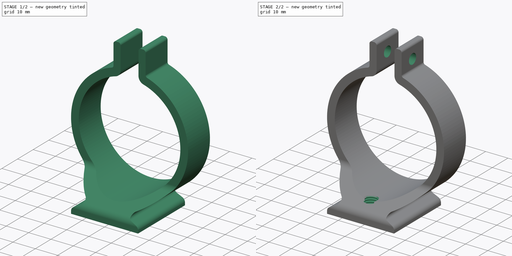
[diagram: build sequence overview — one tinted view per stage of 2, left to right]
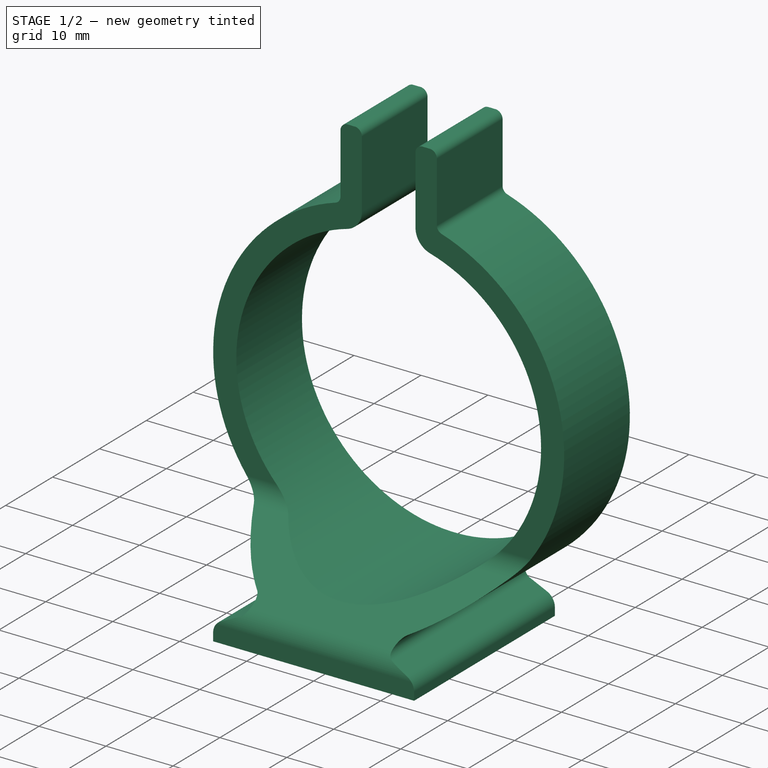
[diagram: stage 1 of 2 — iso view after this stage's code; geometry added in this stage tinted green]
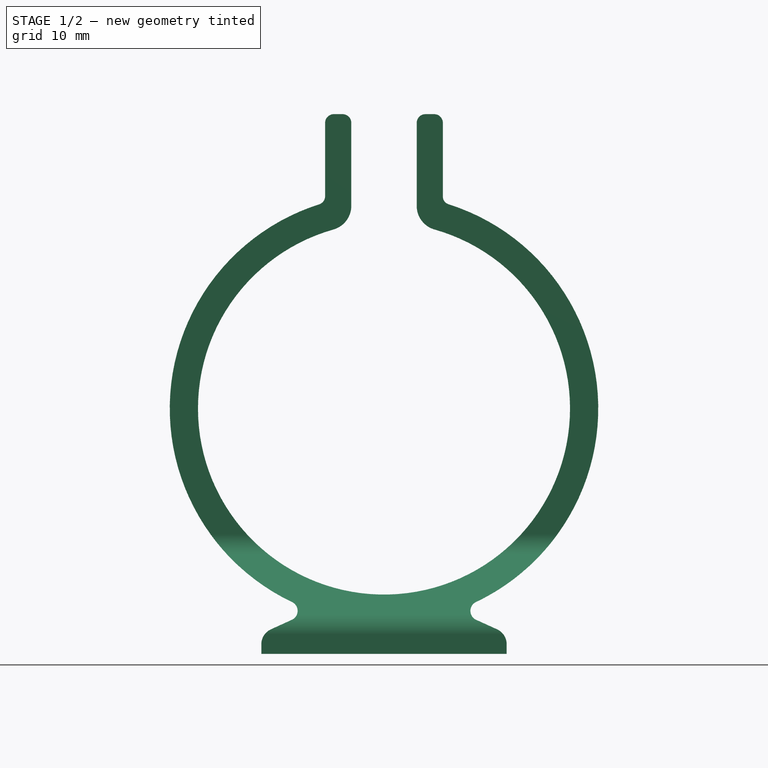
[diagram: stage 1 of 2 — front view after this stage's code; geometry added in this stage tinted green]
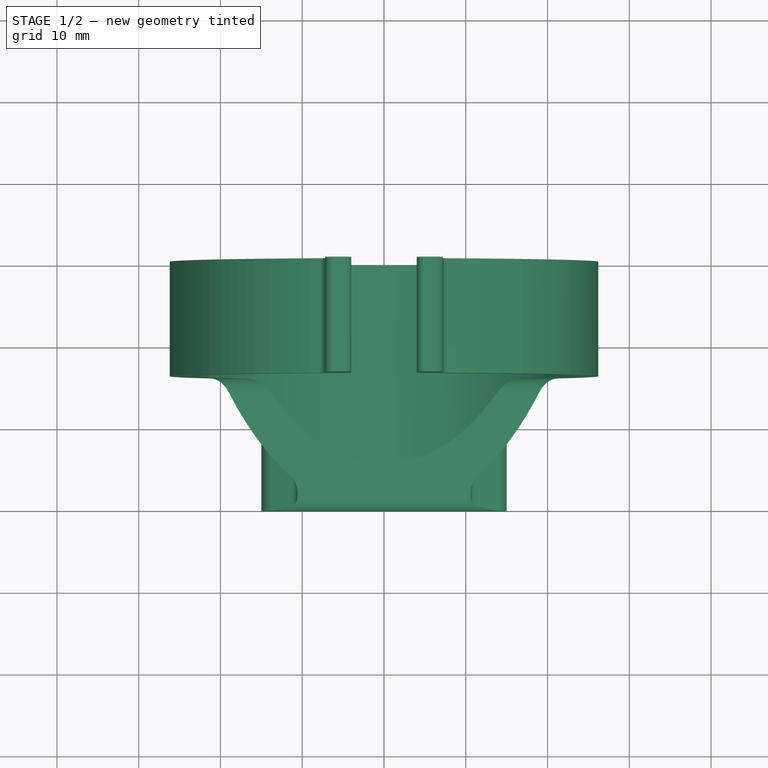
[diagram: stage 1 of 2 — top view after this stage's code; geometry added in this stage tinted green]
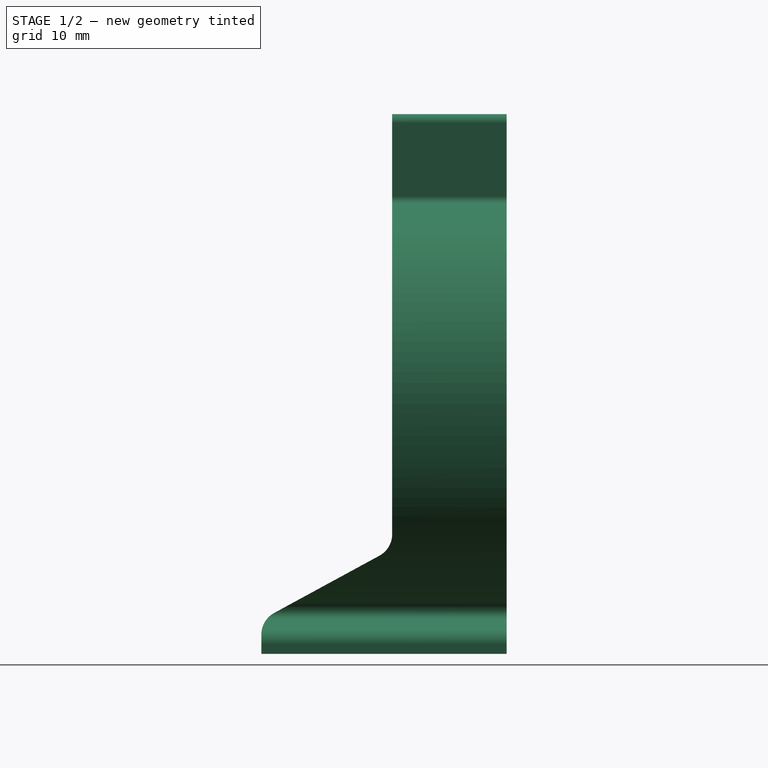
[diagram: stage 1 of 2 — right view after this stage's code; geometry added in this stage tinted green]
FCSTD DOCUMENT  (FreeCAD 1.0R39109 (Git))
Label: cam_lens_mt_75mm_shorter
License: All rights reserved
LicenseURL: http://en.wikipedia.org/wiki/All_rights_reserved
objects: Sketcher::SketchObject×4, PartDesign::Pocket×2, Spreadsheet::Sheet×1, PartDesign::Pad×1, PartDesign::Hole×1, PartDesign::Body×1, App::Part×1, App::DocumentObjectGroup×1
note: 21 computed .brp shape members not serialized (recipe doc carries the construction recipe); baked Part::Feature solids carry a one-line shape summary decoded from their .brp

FEATURE [Spreadsheet::Sheet] Spreadsheet  label="pp"
  cells = A2='lens diam; B2(lens_diam)==46 mm; A3='ring width; B3(ring_width)==14 mm; A4='ring height above base; B4(ring_height_above_base)==12 mm; A5='ring tab height; B5(ring_tab_height)==9 mm; A6='ring tab hole diam; B6(ring_tab_hole)==4.6 mm; A7='ring gap; B7(ring_gap)==8 mm; A8='wall thick ring; B8(wall_thick_ring)==3.2 mm; A9='wall thick plate; B9(wall_thick)==5 mm; A10='plate width; B10(plate_width)==30 mm; A11='plate length; B11(plate_leng)==30 mm; A13='std rad; B13(std_rad)==3 mm; A14='std rad small; B14(std_rad_small)==1.6 mm
FEATURE [Sketcher::SketchObject] Sketch  label="Sketch_main"
  ArcFitTolerance = 0
  FullyConstrained = true
  MakeInternals = false
  MapMode = 5
  Placement = pos=(0,0,0) rot=(1,0,0;1.5708rad)
  expr: Constraints[19] = <<pp>>.std_rad
  expr: Constraints[3] = <<pp>>.lens_diam + 2 * <<pp>>.wall_thick_ring
  sketch-geometry (32):
    g0: ArcOfCircle CenterX=0 CenterY=30 CenterZ=0 NormalX=0 NormalY=0 NormalZ=1 AngleXU=0 Radius=22.75 StartAngle=1.84611 EndAngle=7.57867
    g1: ArcOfCircle CenterX=0 CenterY=30 CenterZ=0 NormalX=0 NormalY=0 NormalZ=1 AngleXU=0 Radius=26.2 StartAngle=1.87882 EndAngle=4.26857
    g2: ArcOfCircle CenterX=0 CenterY=30 CenterZ=0 NormalX=0 NormalY=0 NormalZ=1 AngleXU=0 Radius=26.2 StartAngle=5.15621 EndAngle=7.54775
    g3: LineSegment StartX=-15 StartY=0 StartZ=0 EndX=15 EndY=0 EndZ=0
    g4: LineSegment StartX=-15 StartY=0 StartZ=0 EndX=-15 EndY=1.17904 EndZ=0
    g5: LineSegment StartX=15 StartY=0 StartZ=0 EndX=15 EndY=1.17904 EndZ=0
    g6: LineSegment [constr] StartX=-15 StartY=1.17904 StartZ=0 EndX=15 EndY=1.17904 EndZ=0
    g7: LineSegment StartX=-4 StartY=54.7803 StartZ=0 EndX=-4 EndY=64.9345 EndZ=0
    g8: LineSegment StartX=4 StartY=54.7803 StartZ=0 EndX=4 EndY=64.9345 EndZ=0
    g9: ArcOfCircle CenterX=-7 CenterY=54.7803 CenterZ=0 NormalX=0 NormalY=0 NormalZ=1 AngleXU=0 Radius=3 StartAngle=4.9877 EndAngle=6.28319
    g10: ArcOfCircle CenterX=7 CenterY=54.7803 CenterZ=0 NormalX=0 NormalY=0 NormalZ=1 AngleXU=0 Radius=3 StartAngle=3.14159 EndAngle=4.43708
    g11: LineSegment StartX=-7.2 StartY=55.9833 StartZ=0 EndX=-7.2 EndY=64.9345 EndZ=0
    g12: LineSegment StartX=-6.13333 StartY=66.0012 StartZ=0 EndX=-5.06667 EndY=66.0012 EndZ=0
    g13: LineSegment StartX=5.06667 StartY=66.0012 StartZ=0 EndX=6.13333 EndY=66.0012 EndZ=0
    g14: ArcOfCircle CenterX=-8.26667 CenterY=55.9833 CenterZ=0 NormalX=0 NormalY=0 NormalZ=1 AngleXU=0 Radius=1.06667 StartAngle=5.02042 EndAngle=6.28319
    g15: ArcOfCircle CenterX=8.2 CenterY=55.9345 CenterZ=0 NormalX=0 NormalY=0 NormalZ=1 AngleXU=0 Radius=1 StartAngle=3.14159 EndAngle=4.40615
    g16: LineSegment [constr] StartX=-5.06667 StartY=66.0012 StartZ=0 EndX=5.06667 EndY=66.0012 EndZ=0
    g17: LineSegment [constr] StartX=-4 StartY=54.7803 StartZ=0 EndX=4 EndY=54.7803 EndZ=0
    g18: ArcOfCircle CenterX=-6.13333 CenterY=64.9345 CenterZ=0 NormalX=0 NormalY=0 NormalZ=1 AngleXU=0 Radius=1.06667 StartAngle=1.5708 EndAngle=3.14159
    g19: ArcOfCircle CenterX=-5.06667 CenterY=64.9345 CenterZ=0 NormalX=0 NormalY=0 NormalZ=1 AngleXU=0 Radius=1.06667 StartAngle=1e-15 EndAngle=1.5708
    g20: ArcOfCircle CenterX=5.06667 CenterY=64.9345 CenterZ=0 NormalX=0 NormalY=0 NormalZ=1 AngleXU=0 Radius=1.06667 StartAngle=1.5708 EndAngle=3.14159
    g21: ArcOfCircle CenterX=6.13333 CenterY=64.9345 CenterZ=0 NormalX=0 NormalY=0 NormalZ=1 AngleXU=0 Radius=1.06667 StartAngle=2.1e-15 EndAngle=1.5708
    g22: LineSegment StartX=-11.269 StartY=4.16195 StartZ=0 EndX=-13.8271 EndY=3 EndZ=0
    g23: LineSegment StartX=11.269 StartY=4.16195 StartZ=0 EndX=13.8271 EndY=3 EndZ=0
    g24: ArcOfCircle CenterX=-11.7653 CenterY=5.25453 CenterZ=0 NormalX=0 NormalY=0 NormalZ=1 AngleXU=0 Radius=1.2 StartAngle=5.13875 EndAngle=7.41017
    g25: ArcOfCircle CenterX=11.7653 CenterY=5.25453 CenterZ=0 NormalX=0 NormalY=0 NormalZ=1 AngleXU=0 Radius=1.2 StartAngle=2.01461 EndAngle=4.28603
    g26: ArcOfCircle CenterX=13 CenterY=1.17904 CenterZ=0 NormalX=0 NormalY=0 NormalZ=1 AngleXU=0 Radius=2 StartAngle=0 EndAngle=1.14444
    g27: ArcOfCircle CenterX=-13 CenterY=1.17904 CenterZ=0 NormalX=0 NormalY=0 NormalZ=1 AngleXU=0 Radius=2 StartAngle=1.99716 EndAngle=3.14159
    g28: GeomPoint [constr] X=0 Y=7.25 Z=0
    g29: GeomPoint [constr] X=7.2 Y=60.4345 Z=0
    g30: LineSegment [constr] StartX=-11.25 StartY=6.33827 StartZ=0 EndX=11.25 EndY=6.33827 EndZ=0
    g31: LineSegment StartX=7.2 StartY=55.9345 StartZ=0 EndX=7.2 EndY=64.9345 EndZ=0
  constraints (77):
    c: PointOnObject(g0,g-2)
    c: Coincident(g1,g0)
    c: Coincident(g2,g0)
    c: Diameter(g2) = 52.4
    c: Equal(g2,g1)
    c: Horizontal(g3)
    c: Symmetric(g3,g3,g-1)
    c: Coincident(g4,g3)
    c: Vertical(g4)
    c: Coincident(g5,g3)
    c: Vertical(g5)
    c: Horizontal(g6)
    c: Vertical(g7)
    c: Vertical(g8)
    c: Tangent(g7,g9) = -1.5708
    c: Tangent(g0,g9) = 1.5708
    c: Tangent(g0,g10) = 1.5708
    c: Tangent(g8,g10) = 1.5708
    c: Equal(g10,g9)
    c: Radius(g10) = 3
    c: Vertical(g11)
    c: Horizontal(g13)
    c: Horizontal(g12)
    c: Tangent(g11,g14) = -1.5708
    c: Tangent(g1,g14) = 1.5708
    c: Tangent(g2,g15) = 1.5708
    c: Radius(g15) = 1
    c: Coincident(g17,g7)
    c: Coincident(g17,g8)
    c: Horizontal(g16)
    c: Horizontal(g17)
    c: Equal(g13,g12)
    c: Tangent(g11,g18) = 1.5708
    c: Tangent(g12,g18) = 1.5708
    c: Tangent(g7,g19) = -1.5708
    c: Tangent(g12,g19) = 1.5708
    c: Tangent(g8,g20) = 1.5708
    c: Tangent(g13,g20) = 1.5708
    c: Tangent(g13,g21) = 1.5708
    c: Coincident(g16,g13)
    c: Coincident(g16,g12)
    c: Equal(g21,g20)
    c: Equal(g19,g20)
    c: Equal(g19,g18)
    c: Tangent(g1,g24) = 1.5708
    c: Tangent(g22,g24) = 1.5708
    c: Tangent(g2,g25) = 1.5708
    c: Tangent(g23,g25) = -1.5708
    c: Tangent(g5,g26) = -1.5708
    c: Tangent(g23,g26) = 1.5708
    c: Tangent(g22,g27) = -1.5708
    c: Tangent(g4,g27) = 1.5708
    c: Coincident(g6,g4)
    c: Coincident(g6,g5)
    c: DistanceY(g3,g23) = 3
    c: PointOnObject(g28,g-2)
    c: PointOnObject(g28,g0)
    c: DistanceX(g3,g3) = 30
    c: Radius(g25) = 1.2
    c: Equal(g25,g24)
    c: Coincident(g30,g1)
    c: Coincident(g30,g2)
    c: Horizontal(g30)
    c: Radius(g26) = 2
    c: Radius(g21) = 1.06667
    c: Equal(g14,g18)
    c: Diameter(g0) = 45.5
    c: Equal(g26,g27)
    c: Tangent(g31,g21) = -1.5708
    c: Tangent(g31,g15) = 1.5708
    c: Vertical(g31)
    c: DistanceX(g8,g21) = 3.2
    c: DistanceX(g17,g17) = 8
    c: DistanceY(g31,g31) = 9
    c: Symmetric(g15,g21,g29)
    c: DistanceY(g3,g0) = 30
    c: DistanceX(g30,g30) = 22.5
FEATURE [PartDesign::Pad] Pad  label="Pad_MainExt"
  Direction = (0,-1,2e-16)
  Length = 30
  Length2 = 10
  Placement = pos=(0,0,0) rot=(1,0,0;1.5708rad)
  Profile = -> Sketch
  ReferenceAxis = -> Sketch [N_Axis]
  Suppressed = false
  Type = 0
  expr: Length = <<pp>>.plate_leng
FEATURE [Sketcher::SketchObject] Sketch001
  ArcFitTolerance = 0
  FullyConstrained = true
  MakeInternals = false
  MapMode = 5
  Placement = pos=(0,0,0) rot=(0.57735,0.57735,0.57735;2.0944rad)
  expr: Constraints[14] = <<pp>>.std_rad
  expr: Constraints[16] = <<pp>>.wall_thick
  expr: Constraints[17] = <<pp>>.ring_height_above_base
  expr: Constraints[18] = <<pp>>.ring_width
  expr: Constraints[19] = <<pp>>.lens_diam * 1.5 + 10 mm
  expr: Constraints[21] = <<pp>>.plate_leng
  sketch-geometry (8):
    g0: LineSegment StartX=-14 StartY=93.6353 StartZ=0 EndX=-14 EndY=14.6353 EndZ=0
    g1: LineSegment StartX=-15.5664 StartY=12 StartZ=0 EndX=-28.4336 EndY=5 EndZ=0
    g2: LineSegment StartX=-93 StartY=0 StartZ=0 EndX=-93 EndY=93.6353 EndZ=0
    g3: LineSegment StartX=-93 StartY=93.6353 StartZ=0 EndX=-14 EndY=93.6353 EndZ=0
    g4: LineSegment StartX=-30 StartY=2.36472 StartZ=0 EndX=-30 EndY=0 EndZ=0
    g5: LineSegment StartX=-30 StartY=0 StartZ=0 EndX=-93 EndY=0 EndZ=0
    g6: ArcOfCircle CenterX=-17 CenterY=14.6353 CenterZ=0 NormalX=0 NormalY=0 NormalZ=1 AngleXU=0 Radius=3 StartAngle=5.21063 EndAngle=6.28319
    g7: ArcOfCircle CenterX=-27 CenterY=2.36472 CenterZ=0 NormalX=0 NormalY=0 NormalZ=1 AngleXU=0 Radius=3 StartAngle=2.06903 EndAngle=3.14159
  constraints (22):
    c: Vertical(g0)
    c: Vertical(g2)
    c: Coincident(g3,g2)
    c: Coincident(g3,g0)
    c: Horizontal(g3)
    c: PointOnObject(g4,g-1)
    c: Vertical(g4)
    c: Coincident(g5,g4)
    c: PointOnObject(g5,g-1)
    c: Coincident(g2,g5)
    c: Tangent(g1,g6) = 1.5708
    c: Tangent(g0,g6) = 1.5708
    c: Tangent(g1,g7) = -1.5708
    c: Tangent(g4,g7) = -1.5708
    c: Radius(g6) = 3
    c: Equal(g6,g7)
    c: DistanceY(g4,g1) = 5
    c: DistanceY(g-1,g1) = 12
    c: DistanceX(g0,g-1) = 14
    c: DistanceY(g0,g0) = 79
    c: Equal(g0,g3)
    c: DistanceX(g4,g-1) = 30
FEATURE [PartDesign::Pocket] Pocket  label="Pocket_SculptPlate"
  BaseFeature = -> Pad
  Direction = (-1,-1e-16,1e-16)
  Length = 5
  Length2 = 5
  Midplane = true
  Placement = pos=(0,0,0) rot=(1,0,0;1.5708rad)
  Profile = -> Sketch001
  ReferenceAxis = -> Sketch001 [N_Axis]
  Suppressed = false
  Type = 1
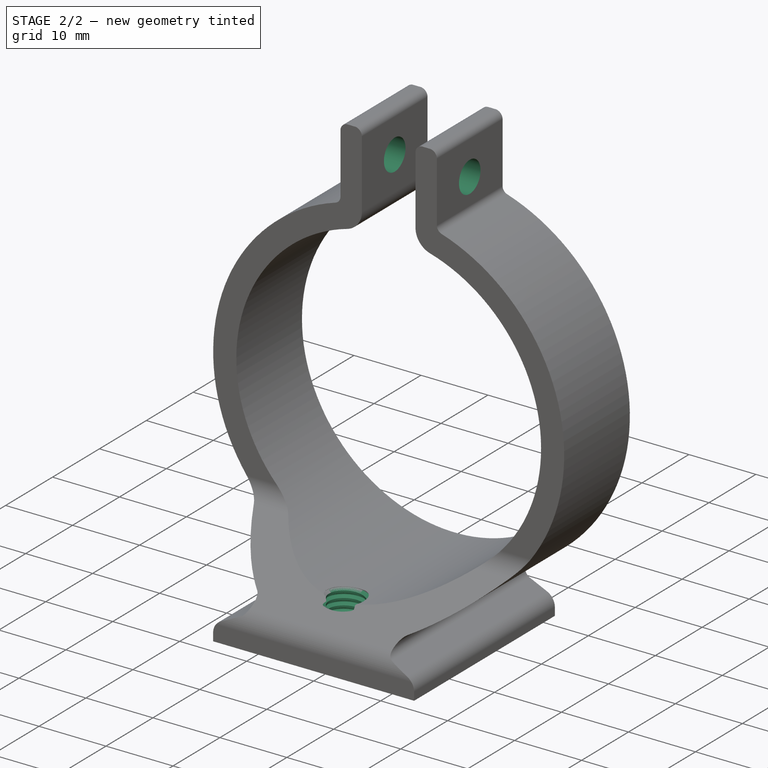
[diagram: stage 2 of 2 — iso view after this stage's code; geometry added in this stage tinted green]
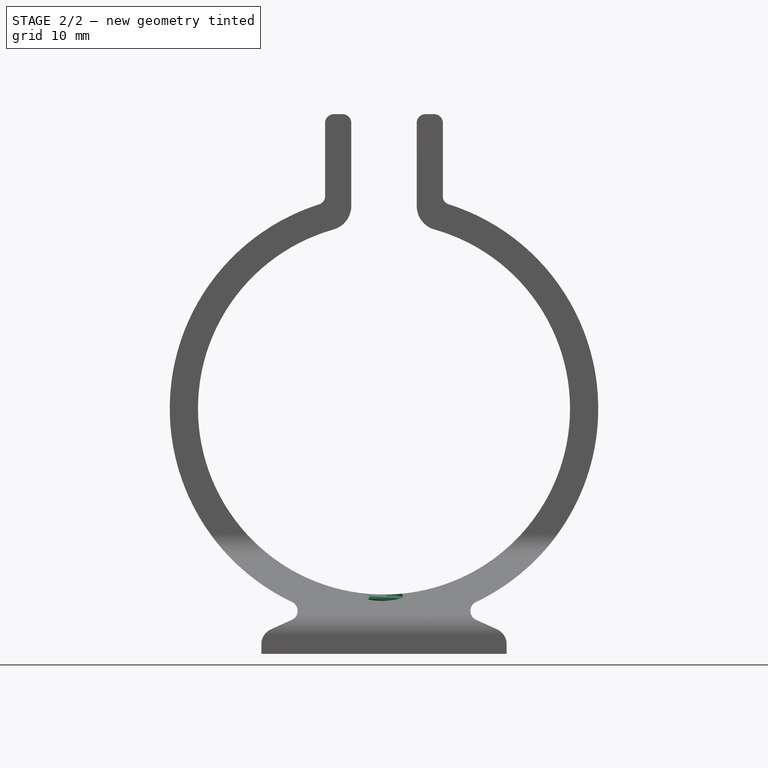
[diagram: stage 2 of 2 — front view after this stage's code; geometry added in this stage tinted green]
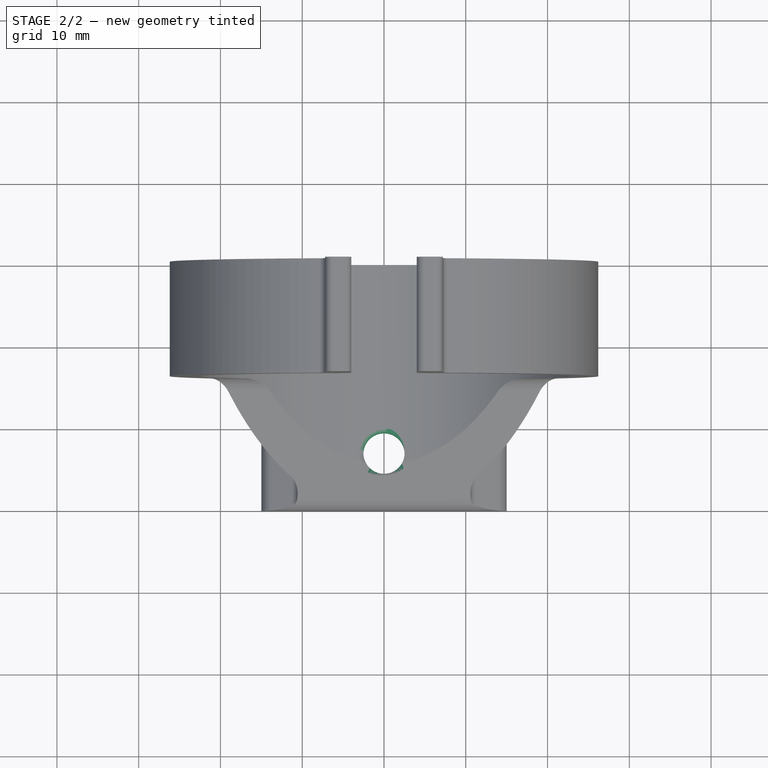
[diagram: stage 2 of 2 — top view after this stage's code; geometry added in this stage tinted green]
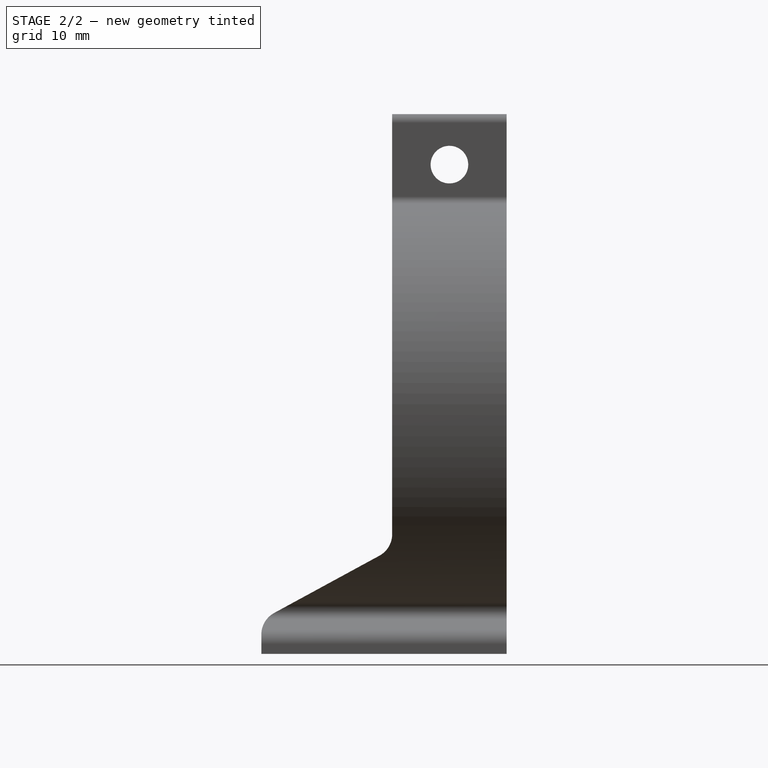
[diagram: stage 2 of 2 — right view after this stage's code; geometry added in this stage tinted green]
FEATURE [Sketcher::SketchObject] Sketch003
  ArcFitTolerance = 0
  FullyConstrained = true
  MakeInternals = false
  MapMode = 5
  Placement = pos=(0,0,0) rot=(0.57735,0.57735,0.57735;2.0944rad)
  expr: Constraints[0] = <<pp>>.ring_width / 2
  expr: Constraints[1] = <<pp>>.ring_tab_hole
  sketch-geometry (1):
    g0: Circle CenterX=-7 CenterY=59.83 CenterZ=0 NormalX=0 NormalY=0 NormalZ=1 AngleXU=0 Radius=2.3
  constraints (3):
    c: DistanceX(g0,g-1) = 7
    c: Diameter(g0) = 4.6
    c: DistanceY(g-1,g0) = 59.83
FEATURE [PartDesign::Pocket] Pocket001
  BaseFeature = -> Pocket
  Direction = (-1,-1e-16,1e-16)
  Length = 5
  Length2 = 5
  Midplane = true
  Placement = pos=(0,0,0) rot=(1,0,0;1.5708rad)
  Profile = -> Sketch003
  ReferenceAxis = -> Sketch003 [N_Axis]
  Suppressed = false
  Type = 1
FEATURE [Sketcher::SketchObject] Sketch004
  ArcFitTolerance = 0
  FullyConstrained = true
  MakeInternals = false
  MapMode = 5
  Placement = pos=(0,0,0) rot=(1,0,0;3.14159rad)
  sketch-geometry (1):
    g0: Circle CenterX=0 CenterY=23 CenterZ=0 NormalX=0 NormalY=0 NormalZ=1 AngleXU=0 Radius=5
  constraints (3):
    c: PointOnObject(g0,g-2)
    c: Diameter(g0) = 10
    c: DistanceY(g-1,g0) = 23
FEATURE [PartDesign::Hole] Hole
  BaseFeature = -> Pocket001
  CustomThreadClearance = 0
  Depth = 25
  DepthType = 0
  Diameter = 5.026
  DrillForDepth = false
  DrillPoint = 1
  DrillPointAngle = 118
  HoleCutCountersinkAngle = 90
  HoleCutCustomValues = false
  HoleCutDepth = 0
  HoleCutDiameter = 6.1
  HoleCutType = 0
  ModelThread = true
  Placement = pos=(0,0,0) rot=(1,0,0;1.5708rad)
  Profile = -> Sketch004
  Refine = true
  Suppressed = false
  Tapered = false
  TaperedAngle = 90
  ThreadClass = 0
  ThreadDepth = 25
  ThreadDepthType = 0
  ThreadDirection = 0
  ThreadFit = 0
  ThreadSize = 14
  ThreadType = 1
  Threaded = true
  UseCustomThreadClearance = false
FEATURE [PartDesign::Body] Body  label="cam_lens_mt_M6"
  AllowCompound = false
  Group = -> [Sketch,Pad,Sketch001,Pocket,Sketch003,Pocket001,Sketch004,Hole]
  Origin = -> Origin001
  Tip = -> Hole
FEATURE [App::Part] Part  label="cam_lens_mt_part"
  Group = -> [Body]
  Origin = -> Origin
FEATURE [App::DocumentObjectGroup] Group
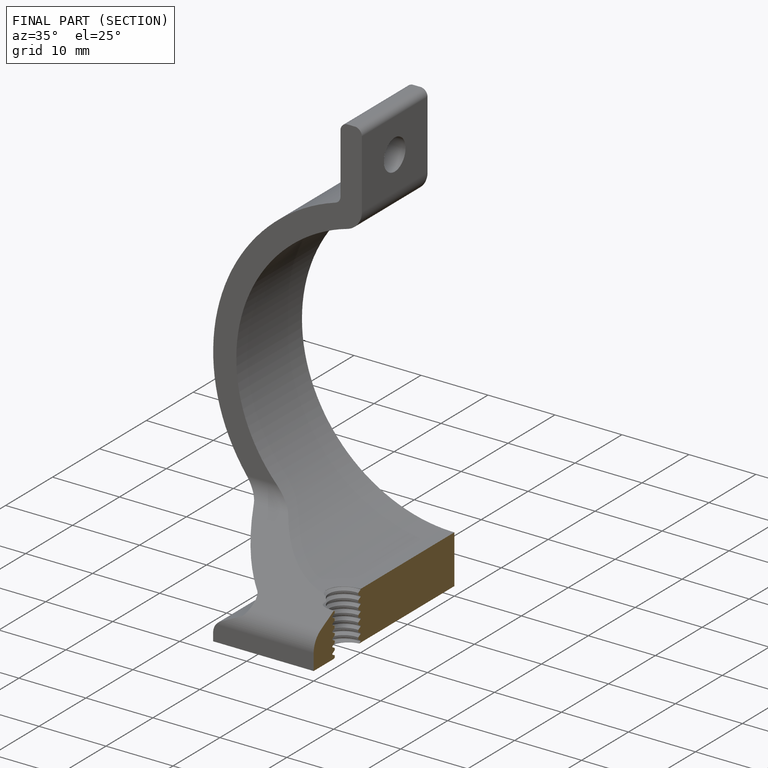
[diagram: finished part — half-section view (interior)]
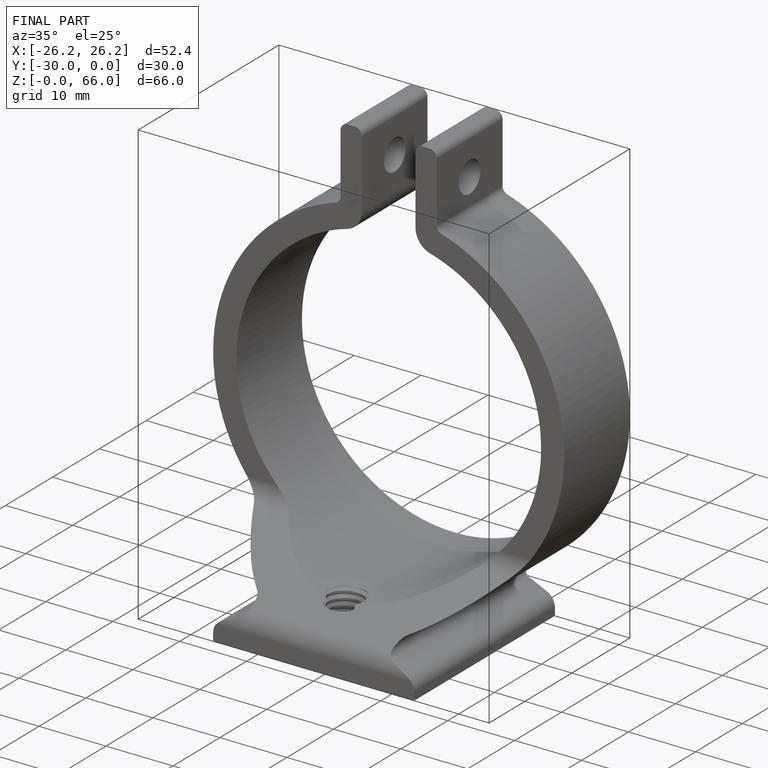
[diagram: finished part — iso view with bounding-box wireframe]
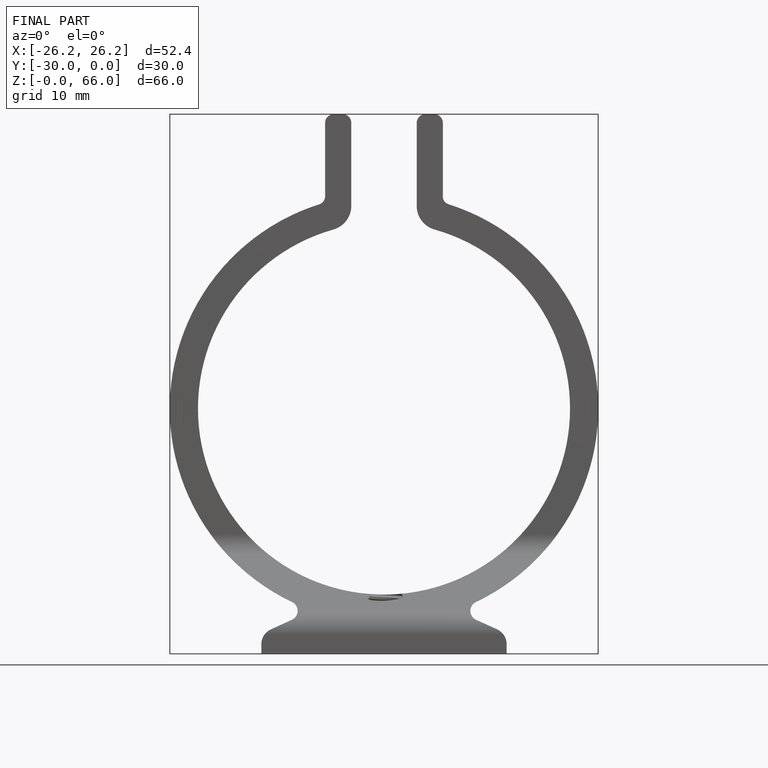
[diagram: finished part — front view with bounding-box wireframe]
